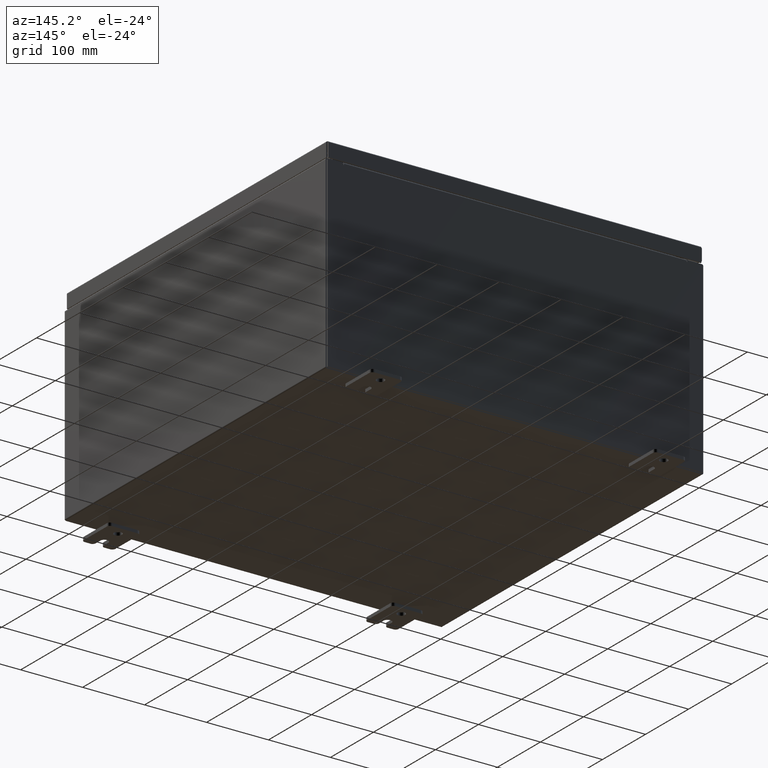
[diagram: clean part render]
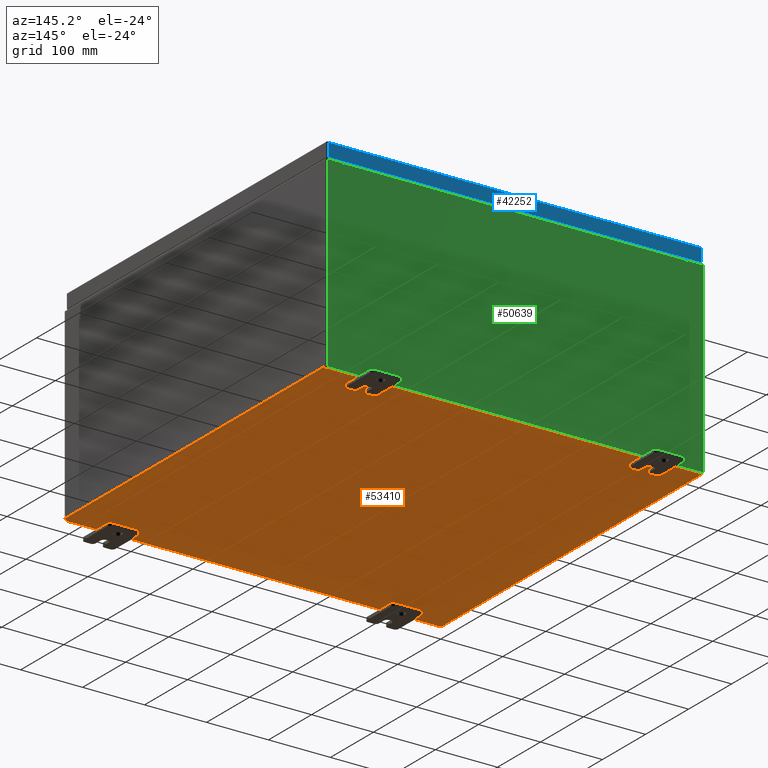
[diagram: same view with three faces highlighted in distinct colors, each labeled with its STEP entity id]
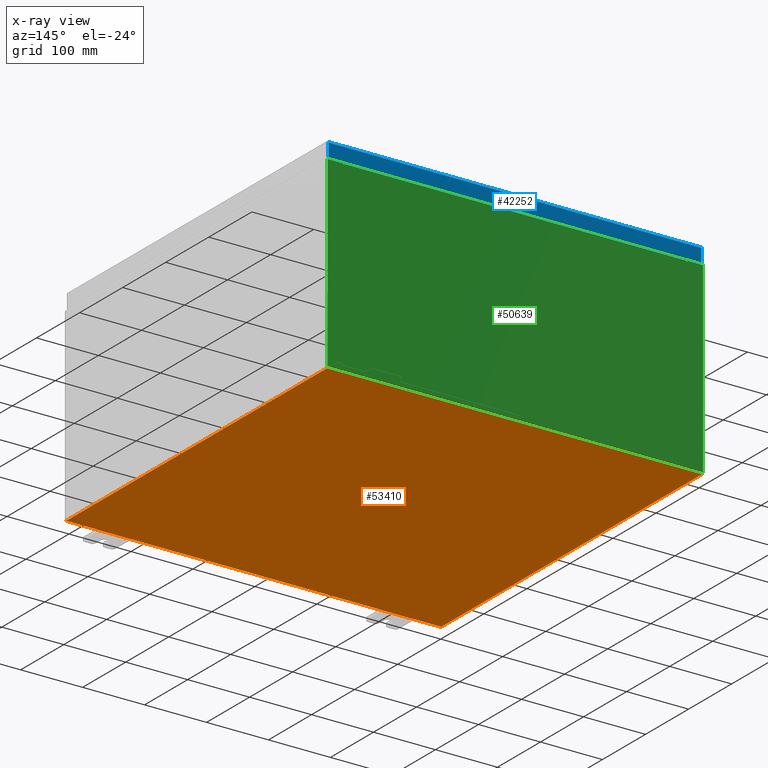
[diagram: x-ray of the same camera — body ghosted, the three highlighted faces saturated]
A machine part, auxiliary view with three faces highlighted in distinct colors.
The next image is the same camera in x-ray (body ghosted, the three faces saturated) — at least one of them is partly hidden behind the body in this view.
Their STEP definitions:

[orange] entity #53410 — the highlighted planar face has unit normal (0, 0, -1).
#1348 = DIRECTION ( 'NONE',  ( -1.000000000000000000, 0.0000000000000000000, -0.0000000000000000000 ) ) ;
#2493 = FACE_OUTER_BOUND ( 'NONE', #33190, .T. ) ;
#3297 = VECTOR ( 'NONE', #56960, 39.37007874015748100 ) ;
#4633 = VERTEX_POINT ( 'NONE', #53471 ) ;
#5059 = VECTOR ( 'NONE', #42302, 39.37007874015748100 ) ;
#5839 = ORIENTED_EDGE ( 'NONE', *, *, #34501, .T. ) ;
#6328 = VERTEX_POINT ( 'NONE', #37884 ) ;
#7801 = CARTESIAN_POINT ( 'NONE',  ( -11.91230000000000400, -11.92530000000000400, -0.07469999999999994700 ) ) ;
#9785 = DIRECTION ( 'NONE',  ( -0.0000000000000000000, -1.000000000000000000, -0.0000000000000000000 ) ) ;
#13232 = LINE ( 'NONE', #22667, #3297 ) ;
#14323 = VERTEX_POINT ( 'NONE', #37120 ) ;
#22667 = CARTESIAN_POINT ( 'NONE',  ( -12.00000000000000400, -11.92530000000000400, -0.07470000000000000300 ) ) ;
#25367 = LINE ( 'NONE', #29155, #26907 ) ;
#26907 = VECTOR ( 'NONE', #53893, 39.37007874015748100 ) ;
#29155 = CARTESIAN_POINT ( 'NONE',  ( -12.00000000000000400, 11.92529999999999800, -0.07470000000000000300 ) ) ;
#29321 = CARTESIAN_POINT ( 'NONE',  ( 11.91229999999999800, 11.92529999999999800, -0.07469999999999994700 ) ) ;
#30715 = DIRECTION ( 'NONE',  ( 0.0000000000000000000, 0.0000000000000000000, -1.000000000000000000 ) ) ;
#31139 = LINE ( 'NONE', #7801, #5059 ) ;
#31980 = VERTEX_POINT ( 'NONE', #34271 ) ;
#32689 = ORIENTED_EDGE ( 'NONE', *, *, #42779, .T. ) ;
#33190 = EDGE_LOOP ( 'NONE', ( #47971, #32689, #57990, #5839 ) ) ;
#34271 = CARTESIAN_POINT ( 'NONE',  ( 11.91229999999998900, -11.92530000000000400, -0.07470000000000000300 ) ) ;
#34501 = EDGE_CURVE ( 'NONE', #14323, #31980, #43653, .T. ) ;
#37120 = CARTESIAN_POINT ( 'NONE',  ( 11.91229999999999800, 11.92529999999999600, -0.07469999999999994700 ) ) ;
#37884 = CARTESIAN_POINT ( 'NONE',  ( -11.91230000000000400, 11.92529999999999800, -0.07470000000000000300 ) ) ;
#40336 = CARTESIAN_POINT ( 'NONE',  ( 0.0000000000000000000, 0.0000000000000000000, -0.07470000000000000300 ) ) ;
#42279 = AXIS2_PLACEMENT_3D ( 'NONE', #40336, #30715, #1348 ) ;
#42302 = DIRECTION ( 'NONE',  ( -0.0000000000000000000, 1.000000000000000000, -0.0000000000000000000 ) ) ;
#42779 = EDGE_CURVE ( 'NONE', #4633, #6328, #31139, .T. ) ;
#43653 = LINE ( 'NONE', #29321, #50533 ) ;
#47971 = ORIENTED_EDGE ( 'NONE', *, *, #53018, .F. ) ;
#50414 = EDGE_CURVE ( 'NONE', #14323, #6328, #25367, .T. ) ;
#50533 = VECTOR ( 'NONE', #9785, 39.37007874015748100 ) ;
#53018 = EDGE_CURVE ( 'NONE', #4633, #31980, #13232, .T. ) ;
#53410 = ADVANCED_FACE ( 'NONE', ( #2493 ), #60035, .T. ) ;
#53471 = CARTESIAN_POINT ( 'NONE',  ( -11.91230000000000400, -11.92530000000000000, -0.07469999999999994700 ) ) ;
#53893 = DIRECTION ( 'NONE',  ( -1.000000000000000000, -0.0000000000000000000, -0.0000000000000000000 ) ) ;
#56960 = DIRECTION ( 'NONE',  ( 1.000000000000000000, 0.0000000000000000000, 0.0000000000000000000 ) ) ;
#57990 = ORIENTED_EDGE ( 'NONE', *, *, #50414, .F. ) ;
#60035 = PLANE ( 'NONE',  #42279 ) ;

[blue] entity #42252 — the highlighted planar face has unit normal (0, -1, -0).
#565 = CARTESIAN_POINT ( 'NONE',  ( -11.93749999999999800, 11.93750000000000000, -0.08770000000000008300 ) ) ;
#904 = CARTESIAN_POINT ( 'NONE',  ( 11.84865786437626900, 11.93750000000000000, -0.08769999999999789100 ) ) ;
#3069 = LINE ( 'NONE', #12888, #40629 ) ;
#4188 = VERTEX_POINT ( 'NONE', #36448 ) ;
#5486 = DIRECTION ( 'NONE',  ( -1.000000000000000000, -8.693008950959990500E-032, -9.153836209136798400E-017 ) ) ;
#5706 = EDGE_CURVE ( 'NONE', #52120, #4188, #3069, .T. ) ;
#6708 = DIRECTION ( 'NONE',  ( -0.0000000000000000000, 2.532419924601857400E-015, -1.000000000000000000 ) ) ;
#8969 = VECTOR ( 'NONE', #53721, 39.37007874015748100 ) ;
#9564 = LINE ( 'NONE', #565, #58608 ) ;
#12888 = CARTESIAN_POINT ( 'NONE',  ( -11.84865786437626600, 11.93750000000000000, -0.07469999999999980800 ) ) ;
#19836 = VERTEX_POINT ( 'NONE', #35311 ) ;
#21333 = EDGE_CURVE ( 'NONE', #4188, #19836, #39654, .T. ) ;
#25080 = AXIS2_PLACEMENT_3D ( 'NONE', #26785, #27001, #61282 ) ;
#25702 = VECTOR ( 'NONE', #56791, 39.37007874015748100 ) ;
#26785 = CARTESIAN_POINT ( 'NONE',  ( -3.805002459576444600E-030, 11.93750000000000000, 3.049157650594625800E-014 ) ) ;
#27001 = DIRECTION ( 'NONE',  ( 3.187436615351995300E-031, -1.000000000000000000, -2.532419924601857400E-015 ) ) ;
#29116 = CARTESIAN_POINT ( 'NONE',  ( -11.93749999999999800, 11.93750000000000200, -0.9377000000000028600 ) ) ;
#31697 = ORIENTED_EDGE ( 'NONE', *, *, #5706, .F. ) ;
#35209 = VERTEX_POINT ( 'NONE', #904 ) ;
#35311 = CARTESIAN_POINT ( 'NONE',  ( 11.84865786437626900, 11.93750000000000200, -0.9376999999999997600 ) ) ;
#36448 = CARTESIAN_POINT ( 'NONE',  ( -11.84865786437626600, 11.93750000000000200, -0.9377000000000028600 ) ) ;
#37173 = EDGE_LOOP ( 'NONE', ( #46293, #38966, #43362, #31697 ) ) ;
#38771 = LINE ( 'NONE', #46939, #25702 ) ;
#38966 = ORIENTED_EDGE ( 'NONE', *, *, #43430, .T. ) ;
#39654 = LINE ( 'NONE', #29116, #8969 ) ;
#40629 = VECTOR ( 'NONE', #6708, 39.37007874015748100 ) ;
#42252 = ADVANCED_FACE ( 'NONE', ( #44977 ), #56129, .F. ) ;
#43362 = ORIENTED_EDGE ( 'NONE', *, *, #21333, .F. ) ;
#43430 = EDGE_CURVE ( 'NONE', #35209, #19836, #38771, .T. ) ;
#44692 = EDGE_CURVE ( 'NONE', #35209, #52120, #9564, .T. ) ;
#44977 = FACE_OUTER_BOUND ( 'NONE', #37173, .T. ) ;
#46293 = ORIENTED_EDGE ( 'NONE', *, *, #44692, .F. ) ;
#46939 = CARTESIAN_POINT ( 'NONE',  ( 11.84865786437626900, 11.93750000000000000, 3.049157650594625800E-014 ) ) ;
#50688 = CARTESIAN_POINT ( 'NONE',  ( -11.84865786437626600, 11.93750000000000000, -0.08769999999999898700 ) ) ;
#52120 = VERTEX_POINT ( 'NONE', #50688 ) ;
#53721 = DIRECTION ( 'NONE',  ( 1.000000000000000000, -4.379057701015054300E-047, 1.258652478756310100E-016 ) ) ;
#56129 = PLANE ( 'NONE',  #25080 ) ;
#56791 = DIRECTION ( 'NONE',  ( 0.0000000000000000000, 2.532419924601857400E-015, -1.000000000000000000 ) ) ;
#58608 = VECTOR ( 'NONE', #5486, 39.37007874015748100 ) ;
#61282 = DIRECTION ( 'NONE',  ( 0.0000000000000000000, 2.532419924601857400E-015, -1.000000000000000000 ) ) ;

[green] entity #50639 — the highlighted planar face has unit normal (0, -1, 0).
#639 = CARTESIAN_POINT ( 'NONE',  ( -10.92454999999999800, -0.0000000000000000000, 0.0000000000000000000 ) ) ;
#1207 = ORIENTED_EDGE ( 'NONE', *, *, #4127, .T. ) ;
#1785 = ORIENTED_EDGE ( 'NONE', *, *, #60138, .F. ) ;
#2146 = VECTOR ( 'NONE', #24410, 39.37007874015748100 ) ;
#3004 = CARTESIAN_POINT ( 'NONE',  ( -11.92530000000000000, 0.0000000000000000000, 5.925300000000000000 ) ) ;
#3795 = CARTESIAN_POINT ( 'NONE',  ( 10.88720000000000200, 0.0000000000000000000, 0.0000000000000000000 ) ) ;
#4127 = EDGE_CURVE ( 'NONE', #41896, #18108, #28483, .T. ) ;
#4431 = CARTESIAN_POINT ( 'NONE',  ( -10.90587500000000000, 0.0000000000000000000, 5.874950000000001000 ) ) ;
#4604 = VECTOR ( 'NONE', #57068, 39.37007874015748100 ) ;
#4674 = ORIENTED_EDGE ( 'NONE', *, *, #23596, .T. ) ;
#5010 = ORIENTED_EDGE ( 'NONE', *, *, #56943, .T. ) ;
#5612 = DIRECTION ( 'NONE',  ( 0.0000000000000000000, 0.0000000000000000000, -1.000000000000000000 ) ) ;
#6122 = LINE ( 'NONE', #27743, #4604 ) ;
#7003 = VERTEX_POINT ( 'NONE', #49583 ) ;
#7220 = VECTOR ( 'NONE', #24060, 39.37007874015748100 ) ;
#8120 = EDGE_CURVE ( 'NONE', #49509, #48781, #41238, .T. ) ;
#8161 = ORIENTED_EDGE ( 'NONE', *, *, #51266, .T. ) ;
#8191 = AXIS2_PLACEMENT_3D ( 'NONE', #4431, #53427, #52463 ) ;
#8373 = VERTEX_POINT ( 'NONE', #40043 ) ;
#8646 = CARTESIAN_POINT ( 'NONE',  ( -10.92454999999999800, 0.0000000000000000000, 5.874950000000001000 ) ) ;
#8687 = DIRECTION ( 'NONE',  ( 0.0000000000000000000, 0.0000000000000000000, 1.000000000000000000 ) ) ;
#10105 = CARTESIAN_POINT ( 'NONE',  ( 10.92455000000000000, 0.0000000000000000000, 5.925300000000001800 ) ) ;
#11165 = VECTOR ( 'NONE', #60390, 39.37007874015748100 ) ;
#11666 = VERTEX_POINT ( 'NONE', #16035 ) ;
#12988 = EDGE_CURVE ( 'NONE', #63434, #49509, #54636, .T. ) ;
#15406 = VECTOR ( 'NONE', #44200, 39.37007874015748100 ) ;
#16035 = CARTESIAN_POINT ( 'NONE',  ( 10.88720000000000200, 0.0000000000000000000, 5.912300000000001000 ) ) ;
#16070 = VECTOR ( 'NONE', #56285, 39.37007874015748100 ) ;
#16219 = CARTESIAN_POINT ( 'NONE',  ( -10.88720000000000000, -0.0000000000000000000, 0.0000000000000000000 ) ) ;
#16847 = CARTESIAN_POINT ( 'NONE',  ( 10.92455000000000000, 0.0000000000000000000, 0.0000000000000000000 ) ) ;
#17614 = CARTESIAN_POINT ( 'NONE',  ( 11.92530000000000000, 0.0000000000000000000, -5.925299999999999100 ) ) ;
#17827 = ORIENTED_EDGE ( 'NONE', *, *, #36755, .T. ) ;
#18108 = VERTEX_POINT ( 'NONE', #19613 ) ;
#18449 = VERTEX_POINT ( 'NONE', #42294 ) ;
#19144 = CARTESIAN_POINT ( 'NONE',  ( -11.92530000000000000, 0.0000000000000000000, -5.925299999999999100 ) ) ;
#19613 = CARTESIAN_POINT ( 'NONE',  ( 11.92530000000000000, 0.0000000000000000000, 5.925300000000001800 ) ) ;
#19728 = VECTOR ( 'NONE', #28853, 39.37007874015748100 ) ;
#19931 = DIRECTION ( 'NONE',  ( 1.000000000000000000, 0.0000000000000000000, 0.0000000000000000000 ) ) ;
#20233 = VERTEX_POINT ( 'NONE', #17614 ) ;
#22748 = EDGE_CURVE ( 'NONE', #8373, #63434, #61789, .T. ) ;
#23596 = EDGE_CURVE ( 'NONE', #8373, #11666, #58735, .T. ) ;
#23869 = CARTESIAN_POINT ( 'NONE',  ( -11.92530000000000000, 0.0000000000000000000, 5.925300000000000000 ) ) ;
#24060 = DIRECTION ( 'NONE',  ( -1.000000000000000000, -0.0000000000000000000, -0.0000000000000000000 ) ) ;
#24410 = DIRECTION ( 'NONE',  ( 0.0000000000000000000, 0.0000000000000000000, 1.000000000000000000 ) ) ;
#25419 = CARTESIAN_POINT ( 'NONE',  ( 10.90587500000000200, 0.0000000000000000000, 5.874950000000001000 ) ) ;
#25690 = DIRECTION ( 'NONE',  ( 0.0000000000000000000, -1.000000000000000000, 0.0000000000000000000 ) ) ;
#25839 = VECTOR ( 'NONE', #8687, 39.37007874015748100 ) ;
#27420 = LINE ( 'NONE', #3795, #25839 ) ;
#27743 = CARTESIAN_POINT ( 'NONE',  ( -11.92530000000000000, 0.0000000000000000000, 5.925300000000000000 ) ) ;
#28483 = LINE ( 'NONE', #3004, #15406 ) ;
#28853 = DIRECTION ( 'NONE',  ( 1.000000000000000000, 0.0000000000000000000, 4.581600452255731000E-017 ) ) ;
#29183 = LINE ( 'NONE', #16847, #16070 ) ;
#30392 = DIRECTION ( 'NONE',  ( 0.0000000000000000000, 0.0000000000000000000, -1.000000000000000000 ) ) ;
#31905 = ORIENTED_EDGE ( 'NONE', *, *, #46417, .T. ) ;
#33403 = ORIENTED_EDGE ( 'NONE', *, *, #41387, .F. ) ;
#33504 = EDGE_CURVE ( 'NONE', #41896, #7003, #29183, .T. ) ;
#33830 = CARTESIAN_POINT ( 'NONE',  ( -11.92530000000000000, 0.0000000000000000000, 5.925300000000000000 ) ) ;
#35252 = VERTEX_POINT ( 'NONE', #60012 ) ;
#36274 = EDGE_LOOP ( 'NONE', ( #55335, #55279, #39243, #4674, #1785, #33403, #57963, #1207, #8161, #31905, #5010, #17827 ) ) ;
#36362 = VECTOR ( 'NONE', #5612, 39.37007874015748100 ) ;
#36755 = EDGE_CURVE ( 'NONE', #47926, #48781, #58819, .T. ) ;
#37288 = VECTOR ( 'NONE', #19931, 39.37007874015748100 ) ;
#37670 = AXIS2_PLACEMENT_3D ( 'NONE', #40277, #25690, #59981 ) ;
#39243 = ORIENTED_EDGE ( 'NONE', *, *, #22748, .F. ) ;
#39292 = CARTESIAN_POINT ( 'NONE',  ( -10.88720000000000000, -0.0000000000000000000, 5.874950000000001000 ) ) ;
#40043 = CARTESIAN_POINT ( 'NONE',  ( -10.88720000000000000, -1.707404996040164500E-016, 5.912300000000001000 ) ) ;
#40277 = CARTESIAN_POINT ( 'NONE',  ( 0.0000000000000000000, 0.0000000000000000000, 0.0000000000000000000 ) ) ;
#41238 = LINE ( 'NONE', #639, #2146 ) ;
#41387 = EDGE_CURVE ( 'NONE', #7003, #35252, #53468, .T. ) ;
#41896 = VERTEX_POINT ( 'NONE', #10105 ) ;
#42294 = CARTESIAN_POINT ( 'NONE',  ( -11.92530000000000000, 0.0000000000000000000, -5.925299999999999100 ) ) ;
#43284 = LINE ( 'NONE', #19144, #7220 ) ;
#44200 = DIRECTION ( 'NONE',  ( 1.000000000000000000, 0.0000000000000000000, 4.581600452255731000E-017 ) ) ;
#45316 = FACE_OUTER_BOUND ( 'NONE', #36274, .T. ) ;
#46417 = EDGE_CURVE ( 'NONE', #20233, #18449, #43284, .T. ) ;
#47926 = VERTEX_POINT ( 'NONE', #33830 ) ;
#48781 = VERTEX_POINT ( 'NONE', #61294 ) ;
#49277 = CARTESIAN_POINT ( 'NONE',  ( -10.88720000000000200, -1.707404996040164500E-016, 5.912300000000001000 ) ) ;
#49402 = LINE ( 'NONE', #54485, #36362 ) ;
#49509 = VERTEX_POINT ( 'NONE', #8646 ) ;
#49583 = CARTESIAN_POINT ( 'NONE',  ( 10.92455000000000000, 0.0000000000000000000, 5.874950000000001000 ) ) ;
#50140 = PLANE ( 'NONE',  #37670 ) ;
#50639 = ADVANCED_FACE ( 'NONE', ( #45316 ), #50140, .F. ) ;
#51266 = EDGE_CURVE ( 'NONE', #18108, #20233, #49402, .T. ) ;
#52463 = DIRECTION ( 'NONE',  ( 0.0000000000000000000, 0.0000000000000000000, -1.000000000000000000 ) ) ;
#53427 = DIRECTION ( 'NONE',  ( -0.0000000000000000000, 1.000000000000000000, -0.0000000000000000000 ) ) ;
#53468 = CIRCLE ( 'NONE', #58324, 0.01867499999999949400 ) ;
#54485 = CARTESIAN_POINT ( 'NONE',  ( 11.92530000000000000, 0.0000000000000000000, 5.925300000000001800 ) ) ;
#54636 = CIRCLE ( 'NONE', #8191, 0.01867499999999949400 ) ;
#55279 = ORIENTED_EDGE ( 'NONE', *, *, #12988, .F. ) ;
#55335 = ORIENTED_EDGE ( 'NONE', *, *, #8120, .F. ) ;
#56285 = DIRECTION ( 'NONE',  ( 0.0000000000000000000, 0.0000000000000000000, -1.000000000000000000 ) ) ;
#56943 = EDGE_CURVE ( 'NONE', #18449, #47926, #6122, .T. ) ;
#57068 = DIRECTION ( 'NONE',  ( -0.0000000000000000000, -0.0000000000000000000, 1.000000000000000000 ) ) ;
#57963 = ORIENTED_EDGE ( 'NONE', *, *, #33504, .F. ) ;
#58324 = AXIS2_PLACEMENT_3D ( 'NONE', #25419, #59709, #30392 ) ;
#58735 = LINE ( 'NONE', #49277, #37288 ) ;
#58819 = LINE ( 'NONE', #23869, #19728 ) ;
#59709 = DIRECTION ( 'NONE',  ( -0.0000000000000000000, 1.000000000000000000, -0.0000000000000000000 ) ) ;
#59981 = DIRECTION ( 'NONE',  ( 0.0000000000000000000, -0.0000000000000000000, -1.000000000000000000 ) ) ;
#60012 = CARTESIAN_POINT ( 'NONE',  ( 10.88720000000000200, 0.0000000000000000000, 5.874950000000001000 ) ) ;
#60138 = EDGE_CURVE ( 'NONE', #35252, #11666, #27420, .T. ) ;
#60390 = DIRECTION ( 'NONE',  ( 0.0000000000000000000, 0.0000000000000000000, -1.000000000000000000 ) ) ;
#61294 = CARTESIAN_POINT ( 'NONE',  ( -10.92454999999999800, 0.0000000000000000000, 5.925300000000000000 ) ) ;
#61789 = LINE ( 'NONE', #16219, #11165 ) ;
#63434 = VERTEX_POINT ( 'NONE', #39292 ) ;